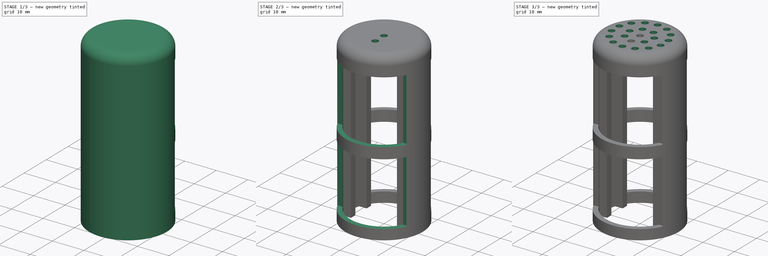
[diagram: build sequence overview — one tinted view per stage of 3, left to right]
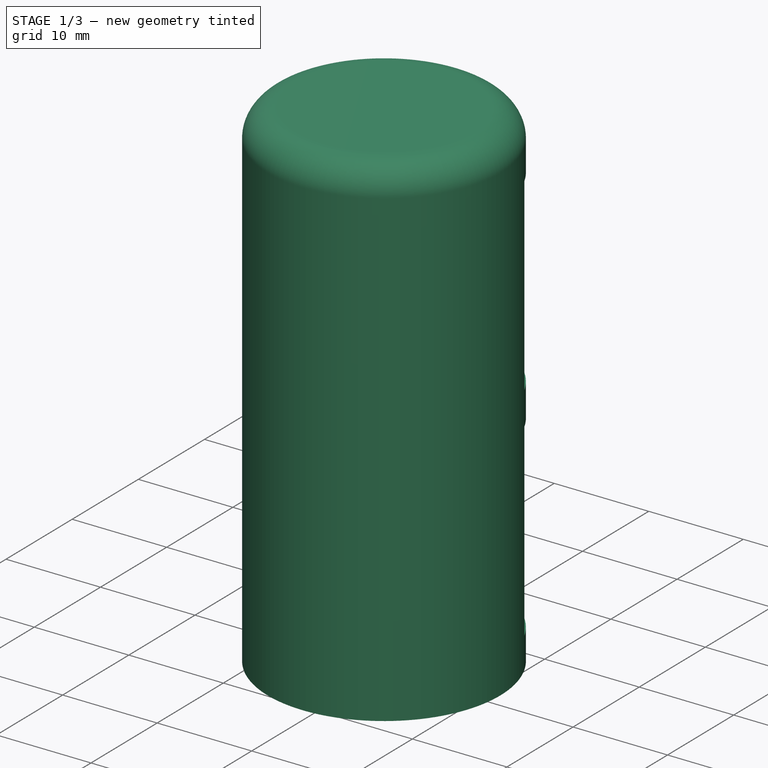
[diagram: stage 1 of 3 — iso view after this stage's code; geometry added in this stage tinted green]
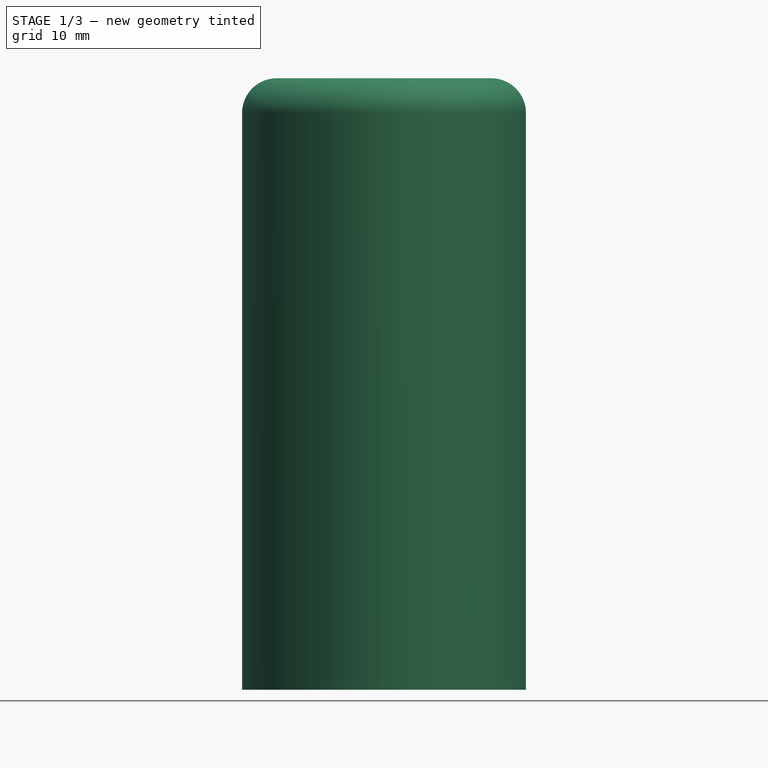
[diagram: stage 1 of 3 — front view after this stage's code; geometry added in this stage tinted green]
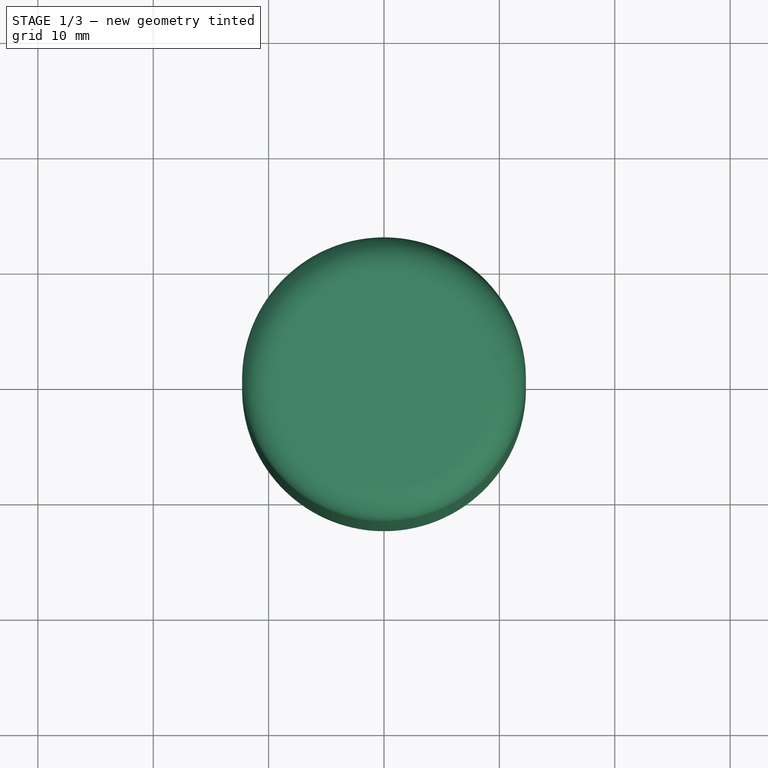
[diagram: stage 1 of 3 — top view after this stage's code; geometry added in this stage tinted green]
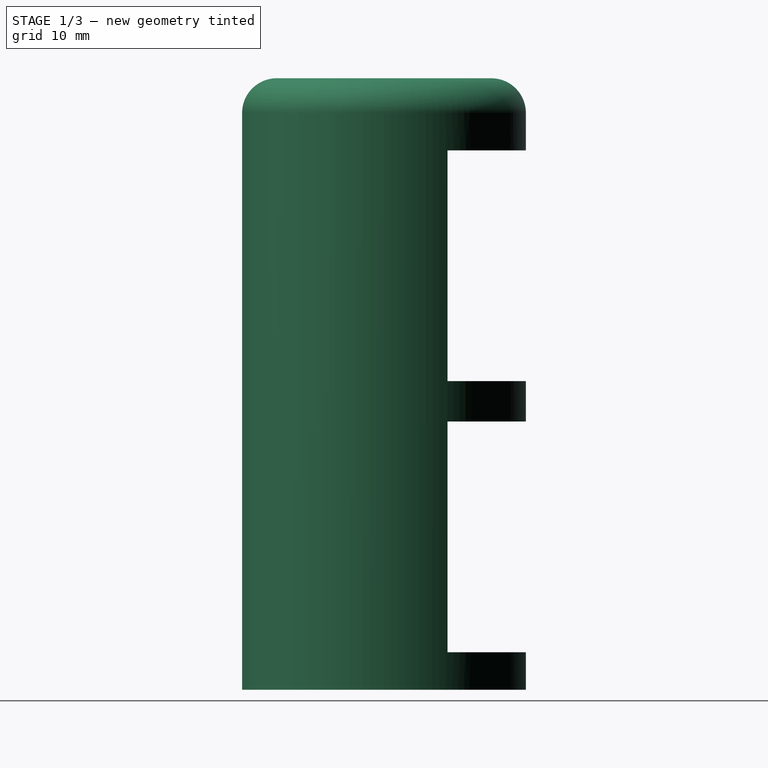
[diagram: stage 1 of 3 — right view after this stage's code; geometry added in this stage tinted green]
FCSTD DOCUMENT  (FreeCAD 0.19R24267 +148 (Git))
Label: SensorMesh
License: All rights reserved
LicenseURL: http://en.wikipedia.org/wiki/All_rights_reserved
objects: Sketcher::SketchObject×6, PartDesign::Pocket×4, PartDesign::Plane×2, PartDesign::PolarPattern×2, PartDesign::Revolution×1, PartDesign::Pad×1, PartDesign::Body×1
note: 23 computed .brp shape members not serialized (recipe doc carries the construction recipe); baked Part::Feature solids carry a one-line shape summary decoded from their .brp

FEATURE [Sketcher::SketchObject] Sketch
  FullyConstrained = true
  MapMode = 5
  Placement = pos=(0,0,0) rot=(1,0,0;1.5708rad)
  Support = -> [XZ_Plane]
  sketch-geometry (12):
    g0: LineSegment StartX=0 StartY=53 StartZ=0 EndX=9.3 EndY=53 EndZ=0
    g1: LineSegment StartX=12.3 StartY=50 StartZ=0 EndX=12.3 EndY=0 EndZ=0
    g2: LineSegment StartX=12.3 StartY=0 StartZ=0 EndX=10.8 EndY=0 EndZ=0
    g3: LineSegment StartX=10.8 StartY=0 StartZ=0 EndX=10.8 EndY=50 EndZ=0
    g4: LineSegment StartX=9.3 StartY=51.5 StartZ=0 EndX=0 EndY=51.5 EndZ=0
    g5: LineSegment StartX=0 StartY=51.5 StartZ=0 EndX=0 EndY=53 EndZ=0
    g6: LineSegment StartX=0 StartY=50 StartZ=0 EndX=9.3 EndY=50 EndZ=0
    g7: LineSegment StartX=9.3 StartY=50 StartZ=0 EndX=9.3 EndY=0 EndZ=0
    g8: LineSegment StartX=0 StartY=51.5 StartZ=0 EndX=10.8 EndY=51.5 EndZ=0
    g9: LineSegment StartX=10.8 StartY=51.5 StartZ=0 EndX=10.8 EndY=0 EndZ=0
    g10: ArcOfCircle CenterX=9.3 CenterY=50 CenterZ=0 NormalX=0 NormalY=0 NormalZ=1 AngleXU=0 Radius=1.5 StartAngle=6.28318 EndAngle=7.85398
    g11: ArcOfCircle CenterX=9.3 CenterY=50 CenterZ=0 NormalX=0 NormalY=0 NormalZ=1 AngleXU=0 Radius=3 StartAngle=-9e-16 EndAngle=1.5708
  constraints (36):
    c: PointOnObject(g0,g-2)
    c: Horizontal(g0)
    c: PointOnObject(g1,g-1)
    c: Vertical(g1)
    c: Coincident(g2,g1)
    c: PointOnObject(g2,g-1)
    c: Coincident(g3,g2)
    c: Vertical(g3)
    c: Horizontal(g4)
    c: Coincident(g5,g4)
    c: Coincident(g5,g0)
    c: PointOnObject(g6,g-2)
    c: Horizontal(g6)
    c: Coincident(g7,g6)
    c: Vertical(g7)
    c: Coincident(g8,g4)
    c: Horizontal(g8)
    c: Coincident(g9,g8)
    c: Coincident(g9,g2)
    c: Vertical(g9)
    c: DistanceX(g8,g8) = 10.8
    c: PointOnObject(g4,g-2)
    c: DistanceY(g5,g5) = 1.5
    c: DistanceY(g6,g4) = 1.5
    c: DistanceX(g7,g2) = 1.5
    c: PointOnObject(g7,g-1)
    c: DistanceX(g2,g2) = 1.5
    c: Coincident(g10,g6)
    c: Coincident(g10,g4)
    c: Coincident(g10,g3)
    c: Coincident(g11,g10)
    c: Coincident(g11,g0)
    c: Coincident(g11,g1)
    c: Equal(g4,g0)
    c: DistanceY(g1,g1) = 50
    c: DistanceY(g-1,g4) = 51.5
FEATURE [PartDesign::Revolution] Revolution
  Angle = 360
  Axis = (0,2e-16,1)
  Base = (0,0,0)
  Placement = pos=(0,0,0) rot=(1,0,0;1.5708rad)
  Profile = -> Sketch
  ReferenceAxis = -> Sketch [V_Axis]
  Reversed = true
FEATURE [Sketcher::SketchObject] Sketch001
  FullyConstrained = true
  MapMode = 5
  Placement = pos=(0,3.43e-14,51.5) rot=(1,0,0;3.14159rad)
  Support = -> [Revolution]
  sketch-geometry (16):
    g0: ArcOfCircle CenterX=0 CenterY=0 CenterZ=0 NormalX=0 NormalY=0 NormalZ=1 AngleXU=0 Radius=10.8 StartAngle=2.70672 EndAngle=2.90323
    g1: LineSegment StartX=-10.4946 StartY=2.55 StartZ=0 EndX=-7.29477 EndY=2.55 EndZ=0
    g2: LineSegment StartX=-7.29477 StartY=2.55 StartZ=0 EndX=-7.29477 EndY=4.55 EndZ=0
    g3: LineSegment StartX=-7.29477 StartY=4.55 StartZ=0 EndX=-9.79477 EndY=4.55 EndZ=0
    g4: LineSegment StartX=-10.4946 StartY=-2.55 StartZ=0 EndX=-7.29477 EndY=-2.55 EndZ=0
    g5: LineSegment StartX=-7.29477 StartY=-2.55 StartZ=0 EndX=-7.29477 EndY=-4.55 EndZ=0
    g6: LineSegment StartX=-7.29477 StartY=-4.55 StartZ=0 EndX=-9.79477 EndY=-4.55 EndZ=0
    g7: LineSegment StartX=10.4946 StartY=2.55 StartZ=0 EndX=7.29477 EndY=2.55 EndZ=0
    g8: LineSegment StartX=7.29477 StartY=2.55 StartZ=0 EndX=7.29477 EndY=4.55 EndZ=0
    g9: LineSegment StartX=7.29477 StartY=4.55 StartZ=0 EndX=9.79477 EndY=4.55 EndZ=0
    g10: LineSegment StartX=7.29477 StartY=-2.55 StartZ=0 EndX=10.4946 EndY=-2.55 EndZ=0
    g11: LineSegment StartX=9.79477 StartY=-4.55 StartZ=0 EndX=7.29477 EndY=-4.55 EndZ=0
    g12: LineSegment StartX=7.29477 StartY=-4.55 StartZ=0 EndX=7.29477 EndY=-2.55 EndZ=0
    g13: ArcOfCircle CenterX=0 CenterY=0 CenterZ=0 NormalX=0 NormalY=0 NormalZ=1 AngleXU=0 Radius=10.8 StartAngle=0.238362 EndAngle=0.434874
    g14: ArcOfCircle CenterX=0 CenterY=0 CenterZ=0 NormalX=0 NormalY=0 NormalZ=1 AngleXU=0 Radius=10.8 StartAngle=3.37995 EndAngle=3.57647
    g15: ArcOfCircle CenterX=0 CenterY=0 CenterZ=0 NormalX=0 NormalY=0 NormalZ=1 AngleXU=0 Radius=10.8 StartAngle=5.84831 EndAngle=6.04482
  constraints (50):
    c: Horizontal(g1)
    c: Coincident(g2,g1)
    c: Vertical(g2)
    c: Coincident(g3,g2)
    c: Horizontal(g3)
    c: Horizontal(g4)
    c: Coincident(g5,g4)
    c: Vertical(g5)
    c: Coincident(g6,g5)
    c: PointOnObject(g6,g0)
    c: Horizontal(g6)
    c: Horizontal(g7)
    c: Coincident(g8,g7)
    c: Vertical(g8)
    c: Coincident(g9,g8)
    c: Horizontal(g9)
    c: PointOnObject(g11,g0)
    c: Horizontal(g11)
    c: Coincident(g12,g11)
    c: Coincident(g12,g10)
    c: Vertical(g12)
    c: Horizontal(g10)
    c: Radius(g0) = 10.8
    c: Equal(g3,g6)
    c: Equal(g6,g11)
    c: Equal(g11,g9)
    c: Equal(g1,g4)
    c: Equal(g4,g7)
    c: Equal(g7,g10)
    c: Equal(g12,g8)
    c: Equal(g8,g2)
    c: Equal(g2,g5)
    c: DistanceY(g4,g1) = 5.1
    c: Coincident(g0,g-1)
    c: DistanceY(g5,g5) = 2
    c: DistanceX(g6,g6) = 2.5
    c: Coincident(g0,g3)
    c: Coincident(g13,g9)
    c: Equal(g0,g13)
    c: Coincident(g15,g10)
    c: Coincident(g13,g7)
    c: Coincident(g0,g13)
    c: Equal(g0,g14)
    c: Coincident(g0,g1)
    c: Coincident(g14,g4)
    c: Coincident(g0,g14)
    c: Equal(g14,g15)
    c: PointOnObject(g14,g6)
    c: PointOnObject(g15,g11)
    c: Coincident(g14,g15)
FEATURE [PartDesign::Pad] Pad
  BaseFeature = -> Revolution
  Direction = (1,1,1)
  Length = 51
  Length2 = 100
  Placement = pos=(0,0,0) rot=(1,0,0;1.5708rad)
  Profile = -> Sketch001
  Type = 0
FEATURE [PartDesign::Plane] DatumPlane
  AttachmentOffset = pos=(0,5,0) rot=(1,0,0;1.5708rad)
  Length = 62.49
  MapMode = 45
  Placement = pos=(-1.8e-15,5,25) rot=(1,0,0;1.5708rad)
  ResizeMode = 0
  Support = -> [Pad]
  Width = 90.49
FEATURE [Sketcher::SketchObject] Sketch002
  FullyConstrained = true
  MapMode = 5
  Placement = pos=(-1.8e-15,5,25) rot=(1,0,0;1.5708rad)
  Support = -> [DatumPlane]
  sketch-geometry (9):
    g0: LineSegment StartX=-11 StartY=21.75 StartZ=0 EndX=11 EndY=21.75 EndZ=0
    g1: LineSegment StartX=11 StartY=21.75 StartZ=0 EndX=11 EndY=1.75 EndZ=0
    g2: LineSegment StartX=11 StartY=1.75 StartZ=0 EndX=-11 EndY=1.75 EndZ=0
    g3: LineSegment StartX=-11 StartY=1.75 StartZ=0 EndX=-11 EndY=21.75 EndZ=0
    g4: LineSegment StartX=-11 StartY=-1.75 StartZ=0 EndX=11 EndY=-1.75 EndZ=0
    g5: LineSegment StartX=11 StartY=-1.75 StartZ=0 EndX=11 EndY=-21.75 EndZ=0
    g6: LineSegment StartX=11 StartY=-21.75 StartZ=0 EndX=-11 EndY=-21.75 EndZ=0
    g7: LineSegment StartX=-11 StartY=-21.75 StartZ=0 EndX=-11 EndY=-1.75 EndZ=0
    g8: LineSegment StartX=11 StartY=1.75 StartZ=0 EndX=11 EndY=-1.75 EndZ=0
  constraints (26):
    c: Coincident(g0,g1)
    c: Coincident(g1,g2)
    c: Coincident(g2,g3)
    c: Coincident(g3,g0)
    c: Horizontal(g0)
    c: Horizontal(g2)
    c: Vertical(g1)
    c: Vertical(g3)
    c: DistanceX(g0,g0) = 22
    c: DistanceY(g3,g3) = 20
    c: Coincident(g4,g5)
    c: Coincident(g5,g6)
    c: Coincident(g6,g7)
    c: Coincident(g7,g4)
    c: Horizontal(g4)
    c: Horizontal(g6)
    c: Vertical(g5)
    c: Vertical(g7)
    c: Equal(g4,g2)
    c: Equal(g7,g3)
    c: Coincident(g8,g1)
    c: Coincident(g8,g4)
    c: Vertical(g8)
    c: DistanceY(g8,g8) = 3.5
    c: DistanceY(g4,g-1) = 1.75
    c: DistanceX(g4,g-1) = 11
FEATURE [PartDesign::Pocket] Pocket
  BaseFeature = -> Pad
  Length = 9
  Length2 = 100
  Placement = pos=(0,0,0) rot=(1,0,0;1.5708rad)
  Profile = -> Sketch002
  Type = 0
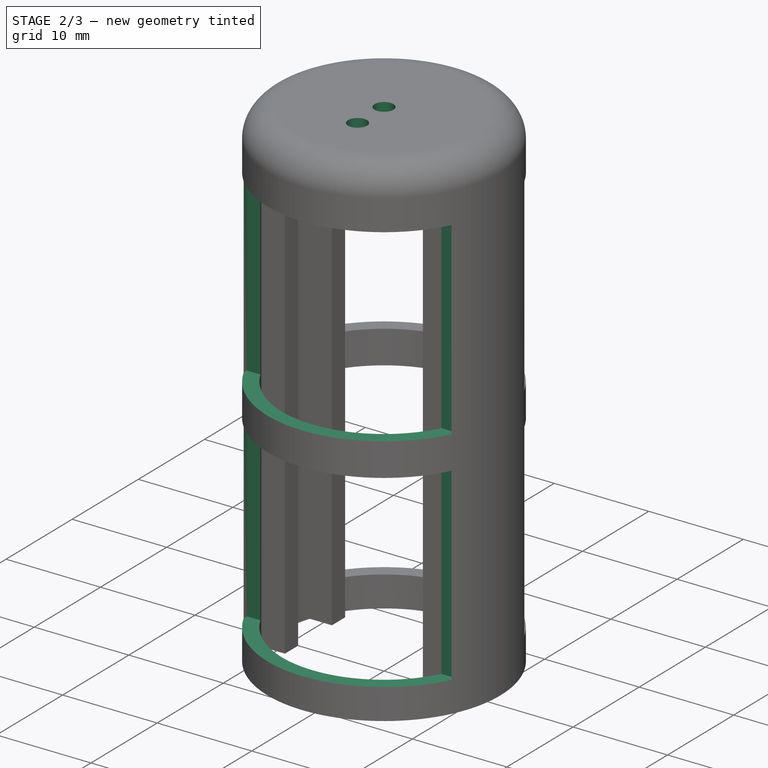
[diagram: stage 2 of 3 — iso view after this stage's code; geometry added in this stage tinted green]
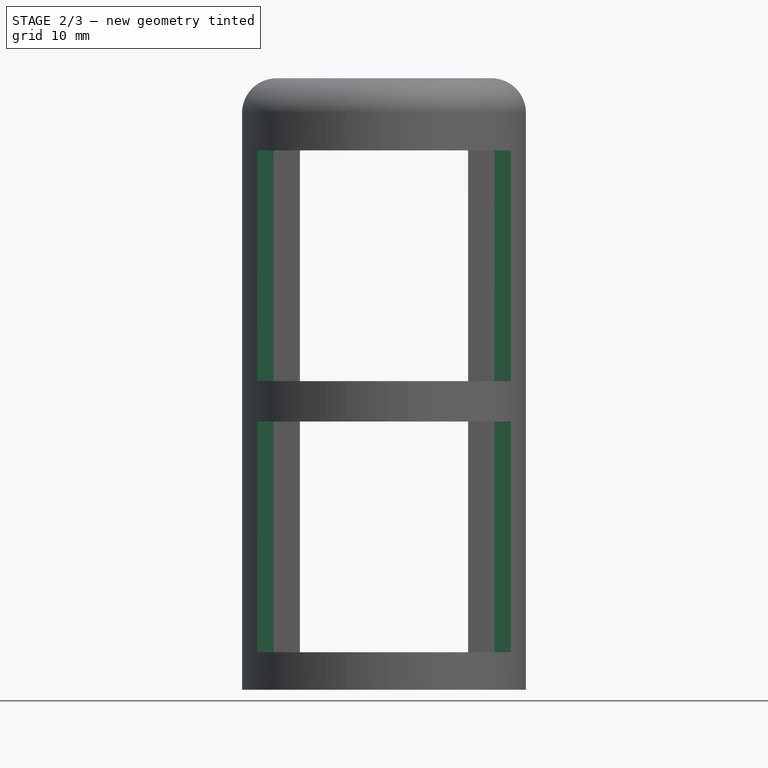
[diagram: stage 2 of 3 — front view after this stage's code; geometry added in this stage tinted green]
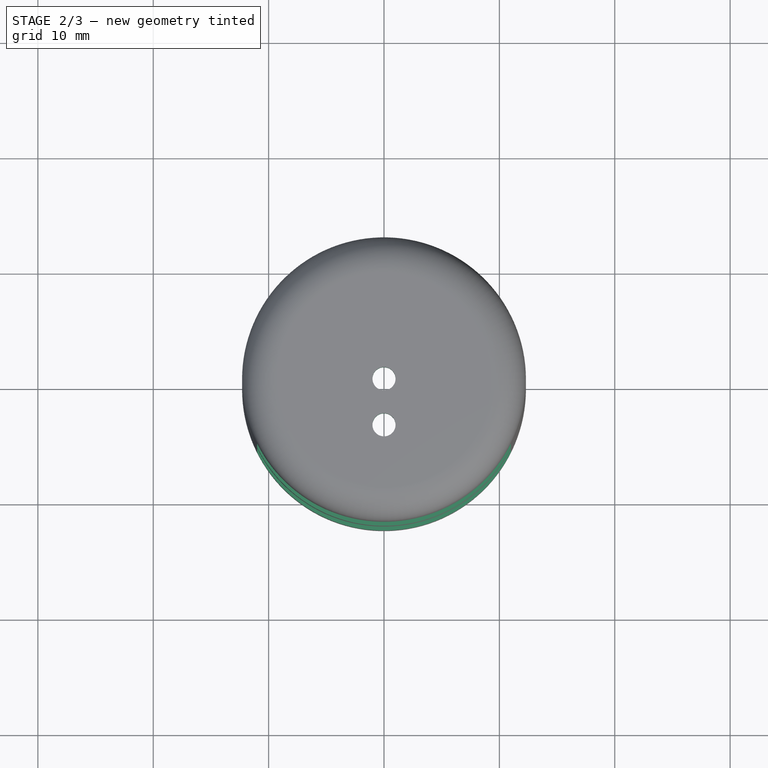
[diagram: stage 2 of 3 — top view after this stage's code; geometry added in this stage tinted green]
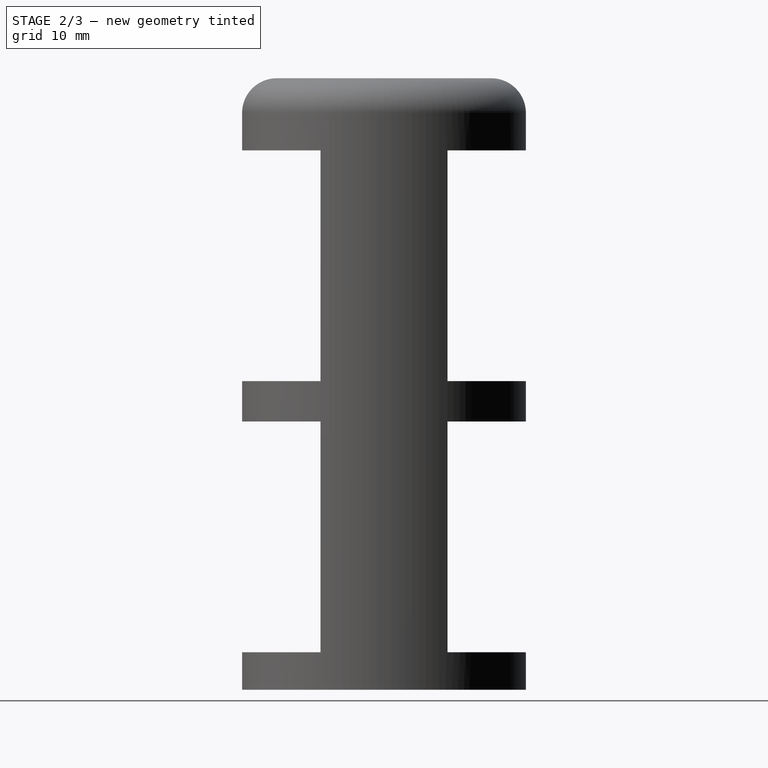
[diagram: stage 2 of 3 — right view after this stage's code; geometry added in this stage tinted green]
FEATURE [PartDesign::Plane] DatumPlane001
  AttachmentOffset = pos=(0,5,0) rot=(1,0,0;1.5708rad)
  Length = 62.49
  MapMode = 5
  Placement = pos=(0,-5,53) rot=(0,0.707107,0.707107;3.14159rad)
  ResizeMode = 0
  Support = -> [Pocket]
  Width = 90.49
FEATURE [Sketcher::SketchObject] Sketch003
  FullyConstrained = true
  MapMode = 5
  Placement = pos=(0,-5,53) rot=(0,0.707107,0.707107;3.14159rad)
  Support = -> [DatumPlane001]
  sketch-geometry (9):
    g0: LineSegment StartX=-11 StartY=-6.25 StartZ=0 EndX=11 EndY=-6.25 EndZ=0
    g1: LineSegment StartX=11 StartY=-6.25 StartZ=0 EndX=11 EndY=-26.25 EndZ=0
    g2: LineSegment StartX=11 StartY=-26.25 StartZ=0 EndX=-11 EndY=-26.25 EndZ=0
    g3: LineSegment StartX=-11 StartY=-26.25 StartZ=0 EndX=-11 EndY=-6.25 EndZ=0
    g4: LineSegment StartX=-11 StartY=-29.75 StartZ=0 EndX=11 EndY=-29.75 EndZ=0
    g5: LineSegment StartX=11 StartY=-29.75 StartZ=0 EndX=11 EndY=-49.75 EndZ=0
    g6: LineSegment StartX=11 StartY=-49.75 StartZ=0 EndX=-11 EndY=-49.75 EndZ=0
    g7: LineSegment StartX=-11 StartY=-49.75 StartZ=0 EndX=-11 EndY=-29.75 EndZ=0
    g8: LineSegment StartX=11 StartY=-26.25 StartZ=0 EndX=11 EndY=-29.75 EndZ=0
  constraints (26):
    c: Coincident(g0,g1)
    c: Coincident(g1,g2)
    c: Coincident(g2,g3)
    c: Coincident(g3,g0)
    c: Horizontal(g0)
    c: Horizontal(g2)
    c: Vertical(g1)
    c: Vertical(g3)
    c: Coincident(g4,g5)
    c: Coincident(g5,g6)
    c: Coincident(g6,g7)
    c: Coincident(g7,g4)
    c: Horizontal(g4)
    c: Horizontal(g6)
    c: Vertical(g5)
    c: Vertical(g7)
    c: Coincident(g8,g1)
    c: Coincident(g8,g4)
    c: Vertical(g8)
    c: Equal(g0,g4)
    c: Equal(g7,g3)
    c: DistanceX(g0,g0) = 22
    c: DistanceY(g3,g3) = 20
    c: DistanceY(g8,g8) = 3.5
    c: DistanceY(g0,g-1) = 6.25
    c: DistanceX(g0,g-1) = 11
FEATURE [PartDesign::Pocket] Pocket001
  BaseFeature = -> Pocket
  Length = 10
  Length2 = 100
  Placement = pos=(0,0,0) rot=(1,0,0;1.5708rad)
  Profile = -> Sketch003
  Type = 0
FEATURE [Sketcher::SketchObject] Sketch004
  FullyConstrained = true
  MapMode = 5
  Placement = pos=(0,1.059e-13,53) rot=(0,0,1;3.14159rad)
  Support = -> [Pocket001]
  sketch-geometry (2):
    g0: Circle CenterX=0 CenterY=4 CenterZ=0 NormalX=0 NormalY=0 NormalZ=1 AngleXU=0 Radius=1
    g1: Circle CenterX=0 CenterY=0 CenterZ=0 NormalX=0 NormalY=0 NormalZ=1 AngleXU=0 Radius=1
  constraints (5):
    c: PointOnObject(g0,g-2)
    c: Coincident(g1,g-1)
    c: Equal(g1,g0)
    c: Radius(g1) = 1
    c: DistanceY(g1,g0) = 4
FEATURE [PartDesign::Pocket] Pocket002
  BaseFeature = -> Pocket001
  Length = 1.5
  Length2 = 100
  Placement = pos=(0,0,0) rot=(1,0,0;1.5708rad)
  Profile = -> Sketch004
  Type = 0
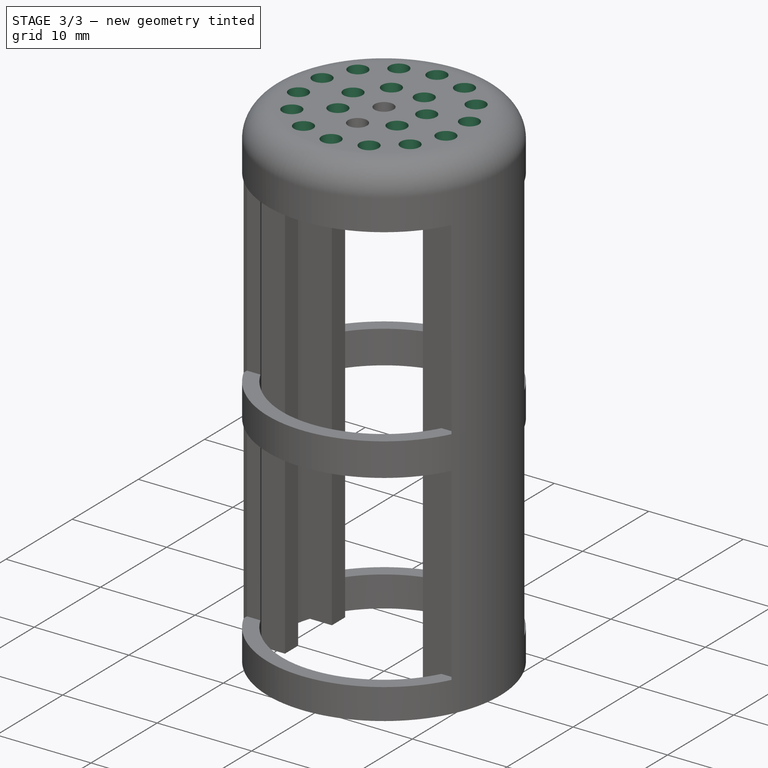
[diagram: stage 3 of 3 — iso view after this stage's code; geometry added in this stage tinted green]
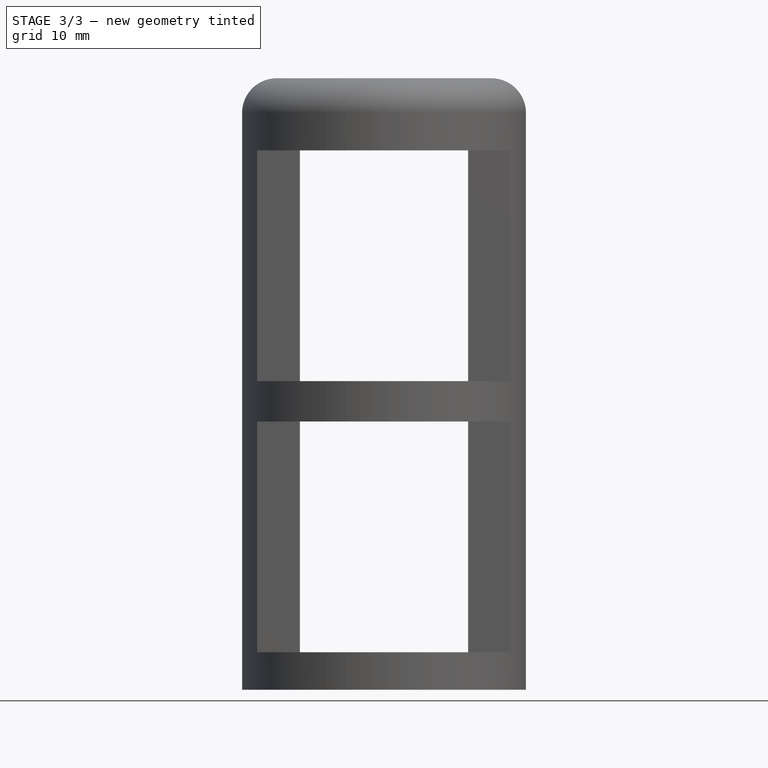
[diagram: stage 3 of 3 — front view after this stage's code; geometry added in this stage tinted green]
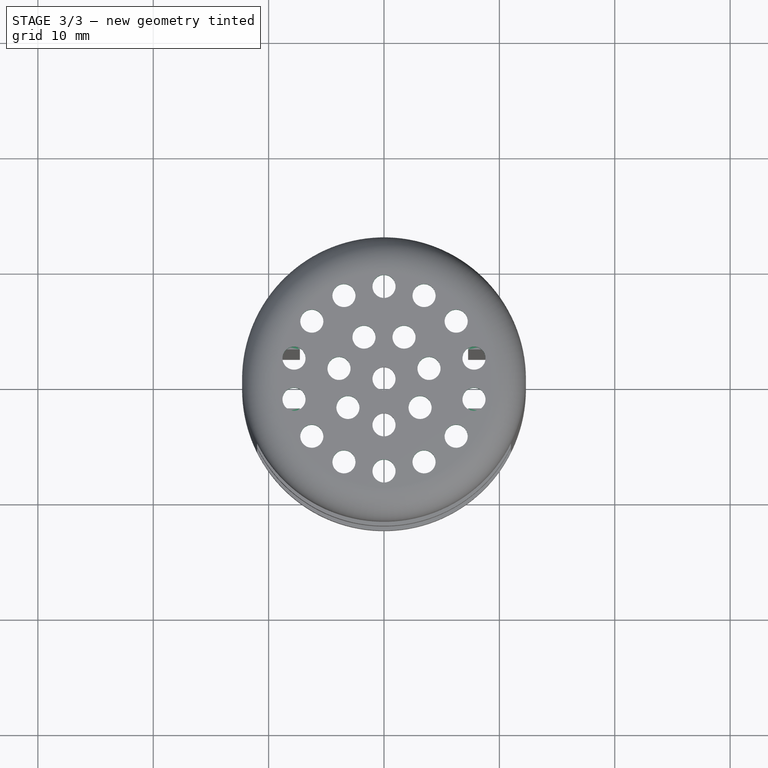
[diagram: stage 3 of 3 — top view after this stage's code; geometry added in this stage tinted green]
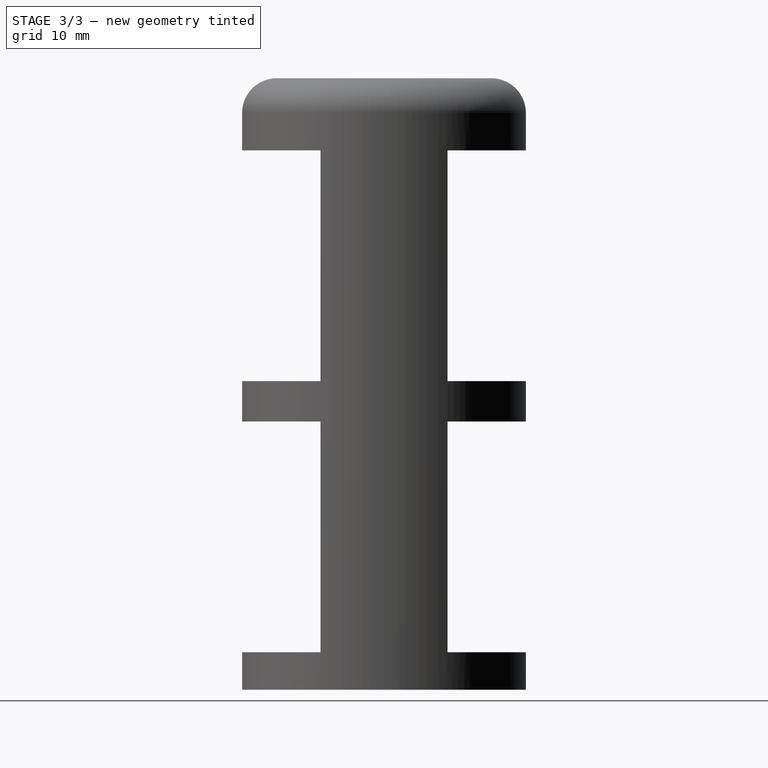
[diagram: stage 3 of 3 — right view after this stage's code; geometry added in this stage tinted green]
FEATURE [PartDesign::PolarPattern] PolarPattern
  Angle = 360
  Axis = -> Sketch004 [N_Axis]
  BaseFeature = -> Pocket002
  Occurrences = 7
  Originals = -> [Pocket002]
  Placement = pos=(0,0,0) rot=(1,0,0;1.5708rad)
FEATURE [Sketcher::SketchObject] Sketch005
  FullyConstrained = true
  MapMode = 5
  Placement = pos=(0,1.295e-13,53) rot=(0,0,1;3.14159rad)
  Support = -> [PolarPattern]
  sketch-geometry (1):
    g0: Circle CenterX=0 CenterY=8 CenterZ=0 NormalX=0 NormalY=0 NormalZ=1 AngleXU=0 Radius=1
  constraints (3):
    c: PointOnObject(g0,g-2)
    c: Radius(g0) = 1
    c: DistanceY(g-1,g0) = 8
FEATURE [PartDesign::Pocket] Pocket003
  BaseFeature = -> PolarPattern
  Length = 1.5
  Length2 = 100
  Placement = pos=(0,0,0) rot=(1,0,0;1.5708rad)
  Profile = -> Sketch005
  Type = 0
FEATURE [PartDesign::PolarPattern] PolarPattern001
  Angle = 360
  Axis = -> Sketch005 [N_Axis]
  BaseFeature = -> Pocket003
  Occurrences = 14
  Originals = -> [Pocket003]
  Placement = pos=(0,0,0) rot=(1,0,0;1.5708rad)
FEATURE [PartDesign::Body] Body
  Group = -> [Sketch,Revolution,Sketch001,Pad,DatumPlane,Sketch002,Pocket,DatumPlane001,Sketch003,Pocket001,Sketch004,Pocket002,PolarPattern,Sketch005,Pocket003,PolarPattern001]
  Origin = -> Origin
  Tip = -> PolarPattern001
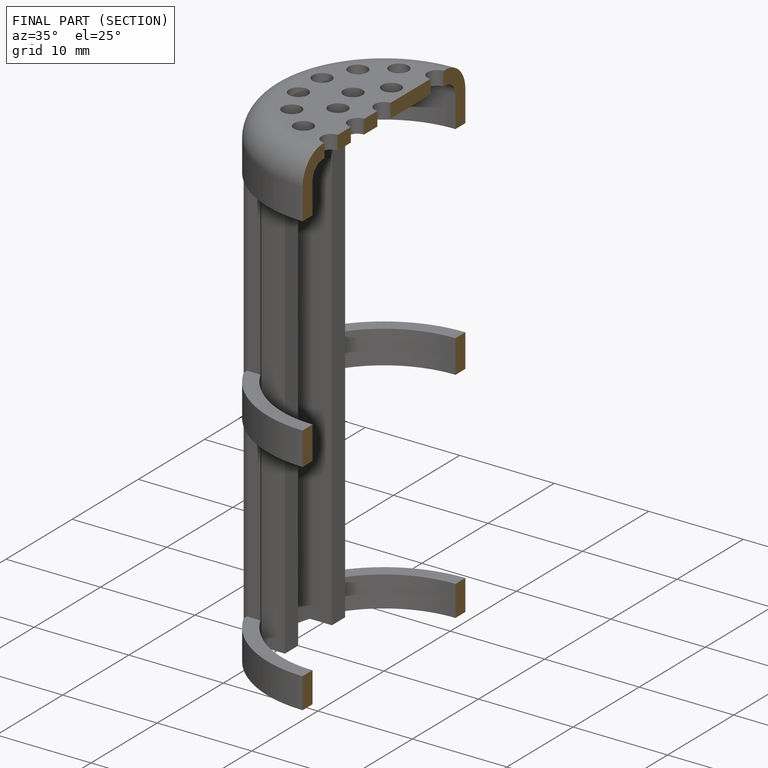
[diagram: finished part — half-section view (interior)]
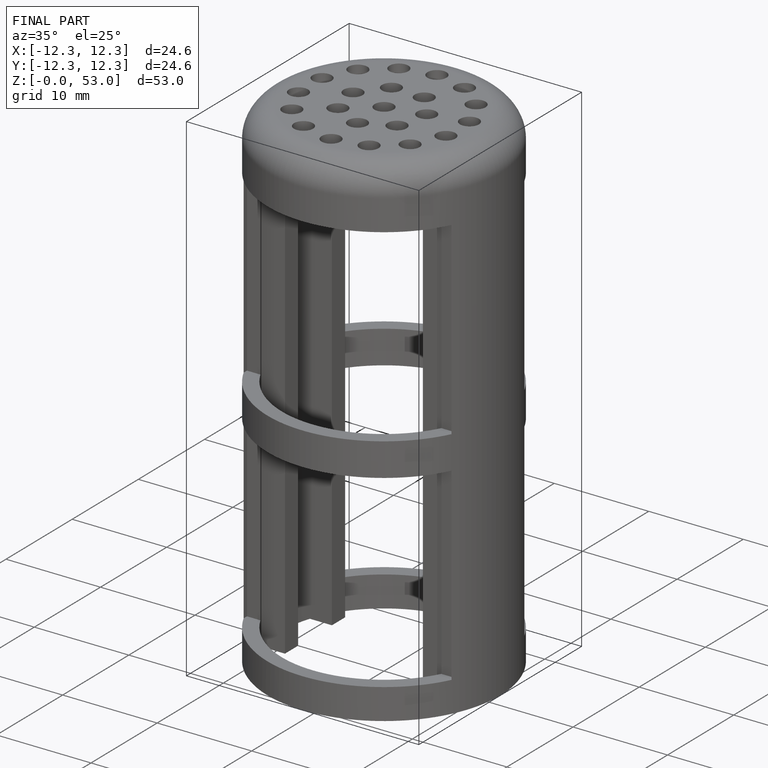
[diagram: finished part — iso view with bounding-box wireframe]
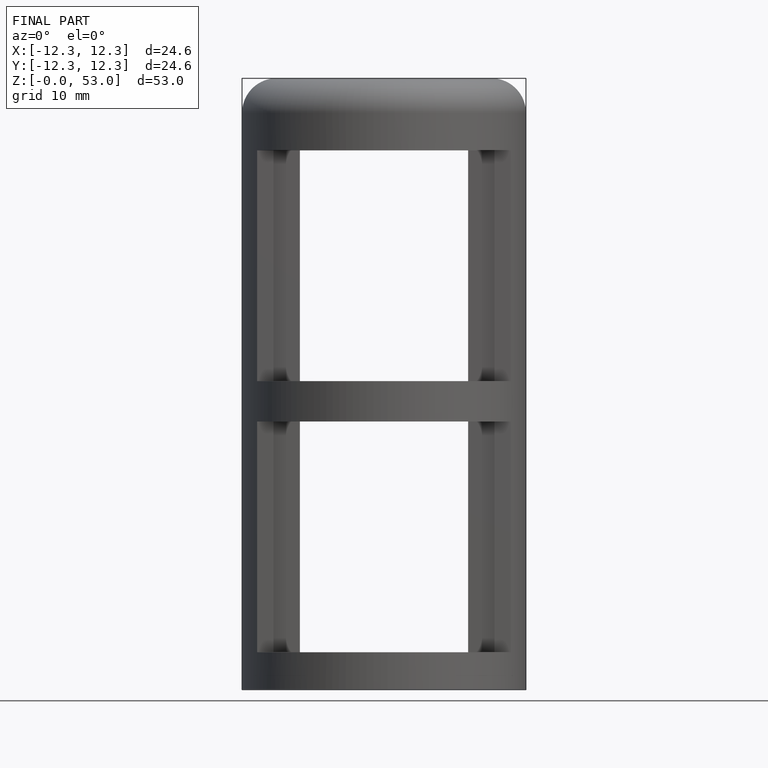
[diagram: finished part — front view with bounding-box wireframe]
